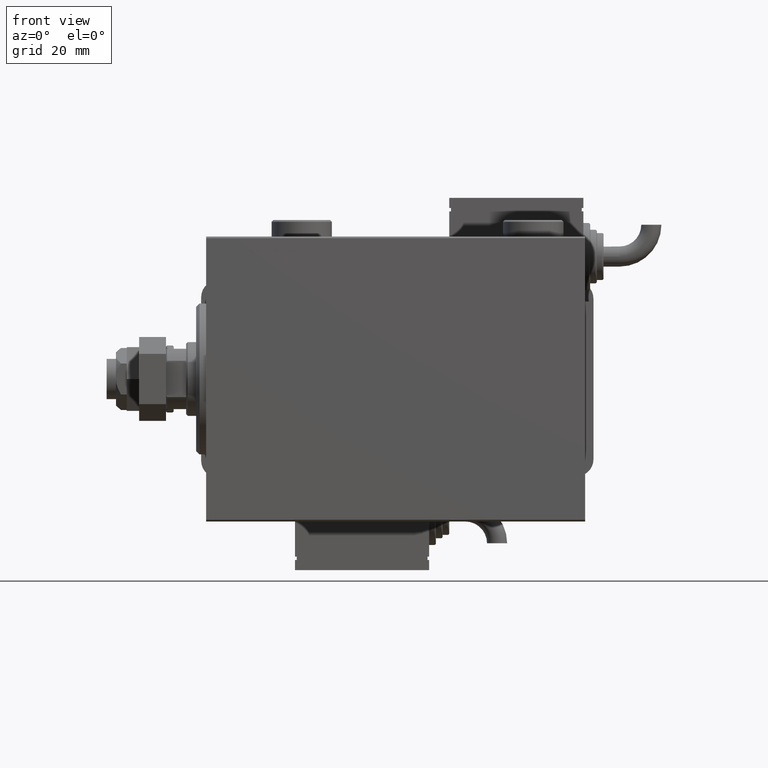
[diagram: clean part render]
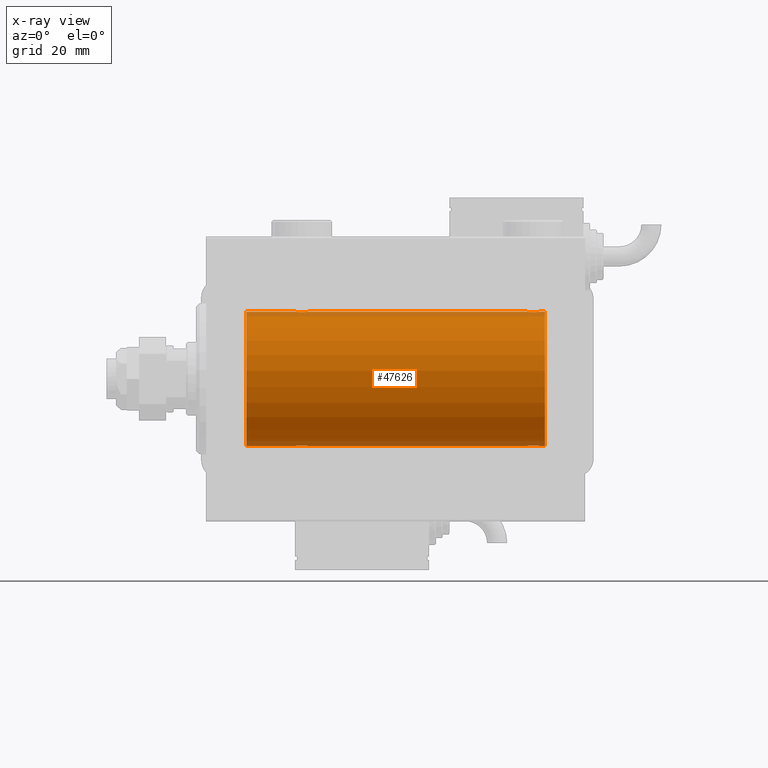
[diagram: x-ray — body ghosted, one internal face saturated and labeled with its STEP entity id]
A machine part, front view, then the same camera in x-ray: the body is ghosted and one INTERNAL B-rep face — a face not visible from any outside direction — is saturated and labeled: STEP entity #47626.
In plain terms, the highlighted cylindrical surface (partial cylindrical patch) has radius 20 mm, axis along (-1, -0, -0).
Its self-contained STEP definition (entity closure, byte-faithful):
#528 = CARTESIAN_POINT ( 'NONE',  ( 101.0000000000000000, 0.000000000000000000, 20.00000000000000000 ) ) ;
#765 = CARTESIAN_POINT ( 'NONE',  ( 29.72028945794465571, -1.589957321664208223, -19.93683391378736047 ) ) ;
#841 = CARTESIAN_POINT ( 'NONE',  ( 29.71805419472152110, -1.591668229360196252, 19.93669678979812332 ) ) ;
#1452 = CARTESIAN_POINT ( 'NONE',  ( 26.50000000000000711, -0.2610801504281929919, 20.00000000000000000 ) ) ;
#1757 = CARTESIAN_POINT ( 'NONE',  ( 27.27971054205535850, -1.589957321664211998, 19.93683391378736047 ) ) ;
#2461 = CARTESIAN_POINT ( 'NONE',  ( 11.99999999999999645, 2.449293598294706513E-15, -20.00000000000000000 ) ) ;
#3026 = CARTESIAN_POINT ( 'NONE',  ( 96.17693331080533881, -1.505486175075777311, 19.94347168299868045 ) ) ;
#3630 = CARTESIAN_POINT ( 'NONE',  ( 98.50067219139243946, -1.736582545981368852, 19.92459705242980661 ) ) ;
#3676 = CARTESIAN_POINT ( 'NONE',  ( 26.55320515808203297, -0.5270924491156698810, -19.99450181871976184 ) ) ;
#3950 = FACE_OUTER_BOUND ( 'NONE', #57231, .T. ) ;
#4290 = CARTESIAN_POINT ( 'NONE',  ( 27.49932780860757475, -1.736582545981376180, -19.92459705242981371 ) ) ;
#4421 = CARTESIAN_POINT ( 'NONE',  ( 101.0000000000000000, 0.000000000000000000, 20.00000000000000000 ) ) ;
#4592 = CARTESIAN_POINT ( 'NONE',  ( 27.17903093152710525, -1.507328959728492457, -19.94333197382385592 ) ) ;
#4611 = CARTESIAN_POINT ( 'NONE',  ( 26.50000000000000355, -1.552596590610734385E-23, 20.00000000000000000 ) ) ;
#4615 = EDGE_CURVE ( 'NONE', #35112, #46193, #13613, .T. ) ;
#4690 = EDGE_CURVE ( 'NONE', #35846, #24786, #26253, .T. ) ;
#5493 = CARTESIAN_POINT ( 'NONE',  ( 28.63058871710834552, -2.000100592782553921, 19.89973863218035888 ) ) ;
#6108 = CARTESIAN_POINT ( 'NONE',  ( 29.14348528733041377, -1.898187925611340088, 19.90978194174746818 ) ) ;
#6527 = CARTESIAN_POINT ( 'NONE',  ( 30.50000000000000000, -4.014971335008767791E-15, 20.00000000000000000 ) ) ;
#6851 = ORIENTED_EDGE ( 'NONE', *, *, #58411, .T. ) ;
#7116 = LINE ( 'NONE', #26040, #42514 ) ;
#7449 = DIRECTION ( 'NONE',  ( -1.000000000000000000, -0.000000000000000000, -0.000000000000000000 ) ) ;
#7649 = CARTESIAN_POINT ( 'NONE',  ( 98.14630673924646942, -1.897222639860602245, -19.90987429971496425 ) ) ;
#7862 = CIRCLE ( 'NONE', #24680, 20.00000000000000000 ) ;
#7953 = CARTESIAN_POINT ( 'NONE',  ( 98.82306668919471804, -1.505486175075774646, -19.94347168299867334 ) ) ;
#8041 = CARTESIAN_POINT ( 'NONE',  ( 26.50000000000000355, -3.809869420541414000E-15, -20.00000000000000000 ) ) ;
#8259 = CARTESIAN_POINT ( 'NONE',  ( 99.09941524884030173, -1.228758402364235724, -19.96307487248084556 ) ) ;
#9254 = CARTESIAN_POINT ( 'NONE',  ( 28.76358144091416236, -1.986835489085814199, -19.90108393514801222 ) ) ;
#10129 = VECTOR ( 'NONE', #7449, 1000.000000000000000 ) ;
#10424 = CARTESIAN_POINT ( 'NONE',  ( 26.50000000000000355, -3.809869420541414000E-15, -20.00000000000000000 ) ) ;
#10464 = CARTESIAN_POINT ( 'NONE',  ( 29.82096906847289119, -1.507328959728493567, 19.94333197382385592 ) ) ;
#11375 = CARTESIAN_POINT ( 'NONE',  ( 30.09774691554730097, -1.230936344679278482, 19.96293863536309132 ) ) ;
#11992 = CARTESIAN_POINT ( 'NONE',  ( 96.17903093152715144, -1.507328959728500006, -19.94333197382386302 ) ) ;
#12446 = AXIS2_PLACEMENT_3D ( 'NONE', #58077, #34510, #38859 ) ;
#12642 = CARTESIAN_POINT ( 'NONE',  ( 98.82096906847290541, -1.507328959728488238, 19.94333197382385947 ) ) ;
#12886 = EDGE_CURVE ( 'NONE', #25390, #35846, #37877, .T. ) ;
#12950 = CARTESIAN_POINT ( 'NONE',  ( 96.85369326075360163, -1.897222639860597360, 19.90987429971497491 ) ) ;
#12999 = CARTESIAN_POINT ( 'NONE',  ( 28.36941128289166159, -2.000100592782553921, -19.89973863218036598 ) ) ;
#13031 = ORIENTED_EDGE ( 'NONE', *, *, #4615, .T. ) ;
#13426 = VERTEX_POINT ( 'NONE', #22160 ) ;
#13609 = EDGE_CURVE ( 'NONE', #17775, #14986, #24354, .T. ) ;
#13613 = B_SPLINE_CURVE_WITH_KNOTS ( 'NONE', 3,
 ( #57907, #1452, #21006, #44277, #52660, #58217, #1757, #15412, #57293, #58526, #14808, #29690, #16027, #5493, #57599, #43355, #6108, #34968, #53882, #841, #10464, #11375, #29385, #34037, #48318, #25043 ),
 .UNSPECIFIED., .F., .F.,
 ( 4, 2, 2, 2, 2, 2, 2, 2, 2, 2, 2, 2, 4 ),
 ( 0.006256819553329811059, 0.007038738568778783733, 0.007820657584227756406, 0.008211617091952238406, 0.008602576599676722141, 0.008993536107401204141, 0.009384495615125686141, 0.009775455122850168141, 0.01016641463057465014, 0.01055737413829913214, 0.01094833364602361414, 0.01173025266147257814, 0.01251217167692154214 ),
 .UNSPECIFIED. ) ;
#13873 = DIRECTION ( 'NONE',  ( -1.000000000000000000, -0.000000000000000000, -0.000000000000000000 ) ) ;
#14808 = CARTESIAN_POINT ( 'NONE',  ( 27.98076487864722495, -1.935816449315125087, 19.90611141657401362 ) ) ;
#14986 = VERTEX_POINT ( 'NONE', #41487 ) ;
#15020 = ORIENTED_EDGE ( 'NONE', *, *, #37478, .F. ) ;
#15331 = CARTESIAN_POINT ( 'NONE',  ( 101.0000000000000000, 2.449293598294706513E-15, -20.00000000000000000 ) ) ;
#15412 = CARTESIAN_POINT ( 'NONE',  ( 27.49693443660397918, -1.735203193119897902, 19.92471783160911158 ) ) ;
#15496 = DIRECTION ( 'NONE',  ( -1.000000000000000000, -0.000000000000000000, -0.000000000000000000 ) ) ;
#16027 = CARTESIAN_POINT ( 'NONE',  ( 28.36634803857552001, -1.999898234284063436, 19.89975896996866211 ) ) ;
#16544 = ORIENTED_EDGE ( 'NONE', *, *, #61132, .T. ) ;
#16634 = CARTESIAN_POINT ( 'NONE',  ( 99.44755062882506991, -0.5243189001514980685, -19.99457699142850231 ) ) ;
#16750 = LINE ( 'NONE', #54612, #10129 ) ;
#16896 = ORIENTED_EDGE ( 'NONE', *, *, #13609, .T. ) ;
#16983 = CARTESIAN_POINT ( 'NONE',  ( 97.23641855908584830, -1.986835489085812867, 19.90108393514801577 ) ) ;
#17136 = EDGE_CURVE ( 'NONE', #36343, #60031, #28017, .T. ) ;
#17465 = EDGE_CURVE ( 'NONE', #55932, #46193, #19761, .T. ) ;
#17642 = CARTESIAN_POINT ( 'NONE',  ( 27.61420923329272981, -1.797933656607917596, -19.91908554465558367 ) ) ;
#17775 = VERTEX_POINT ( 'NONE', #2461 ) ;
#17904 = CARTESIAN_POINT ( 'NONE',  ( 95.50000000000001421, -0.2610801504281927699, 20.00000000000000355 ) ) ;
#18324 = B_SPLINE_CURVE_WITH_KNOTS ( 'NONE', 3,
 ( #41190, #17904, #31271, #54838, #22264, #3026, #50190, #36540, #60101, #12950, #59482, #16983, #22570, #60717, #35926, #45851, #45543, #46159, #3630, #31884, #12642, #36847, #26926, #50494, #55756, #21968 ),
 .UNSPECIFIED., .F., .F.,
 ( 4, 2, 2, 2, 2, 2, 2, 2, 2, 2, 2, 2, 4 ),
 ( 0.006256819553329836213, 0.007038738568778784600, 0.007820657584227733855, 0.008211617091952222794, 0.008602576599676711733, 0.008993536107401198937, 0.009384495615125687876, 0.009775455122850176815, 0.01016641463057466402, 0.01055737413829915296, 0.01094833364602364190, 0.01173025266147261630, 0.01251217167692159418 ),
 .UNSPECIFIED. ) ;
#18568 = CARTESIAN_POINT ( 'NONE',  ( 29.50306556339602437, -1.735203193119894349, -19.92471783160910803 ) ) ;
#18635 = CARTESIAN_POINT ( 'NONE',  ( 95.50000000000000000, -1.207436508668459186E-14, -20.00000000000000000 ) ) ;
#19761 = LINE ( 'NONE', #528, #27466 ) ;
#21006 = CARTESIAN_POINT ( 'NONE',  ( 26.55244937117492299, -0.5243189001515023984, 19.99457699142850586 ) ) ;
#21485 = DIRECTION ( 'NONE',  ( -1.000000000000000000, -0.000000000000000000, -0.000000000000000000 ) ) ;
#21618 = CARTESIAN_POINT ( 'NONE',  ( 99.24825913460016125, -1.005710574260839651, -19.97614991974274901 ) ) ;
#21968 = CARTESIAN_POINT ( 'NONE',  ( 99.50000000000000000, 9.984436361108698300E-16, 20.00000000000000000 ) ) ;
#22160 = CARTESIAN_POINT ( 'NONE',  ( 30.50000000000000000, 2.449293582768389958E-15, -20.00000000000000000 ) ) ;
#22225 = CARTESIAN_POINT ( 'NONE',  ( 97.23922743968432769, -1.987205673487818514, -19.90104673894210663 ) ) ;
#22264 = CARTESIAN_POINT ( 'NONE',  ( 95.90058475115969827, -1.228758402364240609, 19.96307487248084911 ) ) ;
#22570 = CARTESIAN_POINT ( 'NONE',  ( 97.36634803857555198, -1.999898234284061216, 19.89975896996866922 ) ) ;
#23226 = CARTESIAN_POINT ( 'NONE',  ( 30.24825913460018612, -1.005710574260838985, -19.97614991974274190 ) ) ;
#23526 = CARTESIAN_POINT ( 'NONE',  ( 29.38829437207091999, -1.796691196322316664, -19.91919800395357143 ) ) ;
#23600 = DIRECTION ( 'NONE',  ( -1.000000000000000000, -0.000000000000000000, -0.000000000000000000 ) ) ;
#24354 = CIRCLE ( 'NONE', #12446, 20.00000000000000000 ) ;
#24680 = AXIS2_PLACEMENT_3D ( 'NONE', #26551, #41129, #45789 ) ;
#24786 = VERTEX_POINT ( 'NONE', #18635 ) ;
#25043 = CARTESIAN_POINT ( 'NONE',  ( 30.50000000000000000, -4.014971335008767791E-15, 20.00000000000000000 ) ) ;
#25390 = VERTEX_POINT ( 'NONE', #15331 ) ;
#26040 = CARTESIAN_POINT ( 'NONE',  ( 101.0000000000000000, 2.449293598294706513E-15, -20.00000000000000000 ) ) ;
#26253 = B_SPLINE_CURVE_WITH_KNOTS ( 'NONE', 3,
 ( #26263, #45202, #16634, #21618, #8259, #7953, #26573, #54188, #35887, #7649, #35579, #26882, #45807, #54494, #22225, #41150, #27185, #39927, #31231, #58830, #11992, #30925, #54801, #56922, #60679, #28101 ),
 .UNSPECIFIED., .F., .F.,
 ( 4, 2, 2, 2, 2, 2, 2, 2, 2, 2, 2, 2, 4 ),
 ( 0.006256819553329824070, 0.007038738568778795009, 0.007820657584227765080, 0.008211617091952250549, 0.008602576599676736019, 0.008993536107401221488, 0.009384495615125706958, 0.009775455122850190692, 0.01016641463057467790, 0.01055737413829916163, 0.01094833364602364884, 0.01173025266147261630, 0.01251217167692158724 ),
 .UNSPECIFIED. ) ;
#26263 = CARTESIAN_POINT ( 'NONE',  ( 99.50000000000000000, 2.449293582762473501E-15, -20.00000000000000000 ) ) ;
#26551 = CARTESIAN_POINT ( 'NONE',  ( 101.0000000000000000, 0.000000000000000000, 0.000000000000000000 ) ) ;
#26573 = CARTESIAN_POINT ( 'NONE',  ( 98.72028945794467347, -1.589957321664213330, -19.93683391378736758 ) ) ;
#26882 = CARTESIAN_POINT ( 'NONE',  ( 97.76358144091416591, -1.986835489085820639, -19.90108393514801222 ) ) ;
#26926 = CARTESIAN_POINT ( 'NONE',  ( 99.24686976303073038, -1.008108445278681931, 19.97602680192586178 ) ) ;
#27185 = CARTESIAN_POINT ( 'NONE',  ( 96.85651471266960755, -1.898187925611348081, -19.90978194174746818 ) ) ;
#27352 = CARTESIAN_POINT ( 'NONE',  ( 101.0000000000000000, 2.449293598294706513E-15, -20.00000000000000000 ) ) ;
#27466 = VECTOR ( 'NONE', #43349, 1000.000000000000000 ) ;
#27576 = CARTESIAN_POINT ( 'NONE',  ( 29.14630673924643744, -1.897222639860594029, -19.90987429971496780 ) ) ;
#27888 = CARTESIAN_POINT ( 'NONE',  ( 30.49999999999999645, -0.2610801504281900498, -19.99999999999999645 ) ) ;
#28017 = LINE ( 'NONE', #4421, #41329 ) ;
#28101 = CARTESIAN_POINT ( 'NONE',  ( 95.50000000000000000, -1.207436508668459186E-14, -20.00000000000000000 ) ) ;
#28693 = ORIENTED_EDGE ( 'NONE', *, *, #48557, .T. ) ;
#29385 = CARTESIAN_POINT ( 'NONE',  ( 30.24686976303072328, -1.008108445278687926, 19.97602680192586888 ) ) ;
#29690 = CARTESIAN_POINT ( 'NONE',  ( 28.23641855908585541, -1.986835489085814643, 19.90108393514801222 ) ) ;
#30737 = CARTESIAN_POINT ( 'NONE',  ( 99.50000000000000000, 2.449293582762473501E-15, -20.00000000000000000 ) ) ;
#30925 = CARTESIAN_POINT ( 'NONE',  ( 95.90225308445270969, -1.230936344679285144, -19.96293863536309843 ) ) ;
#31231 = CARTESIAN_POINT ( 'NONE',  ( 96.49932780860756054, -1.736582545981379289, -19.92459705242981016 ) ) ;
#31271 = CARTESIAN_POINT ( 'NONE',  ( 95.55244937117491588, -0.5243189001515019543, 19.99457699142849876 ) ) ;
#31884 = CARTESIAN_POINT ( 'NONE',  ( 98.71805419472153176, -1.591668229360190034, 19.93669678979813042 ) ) ;
#32233 = CARTESIAN_POINT ( 'NONE',  ( 27.28194580527848601, -1.591668229360197140, -19.93669678979812332 ) ) ;
#32235 = AXIS2_PLACEMENT_3D ( 'NONE', #50813, #13873, #42416 ) ;
#32832 = CARTESIAN_POINT ( 'NONE',  ( 30.50000000000000000, 2.449293582768389958E-15, -20.00000000000000000 ) ) ;
#34037 = CARTESIAN_POINT ( 'NONE',  ( 30.44679484191797414, -0.5270924491156706582, 19.99450181871975829 ) ) ;
#34510 = DIRECTION ( 'NONE',  ( -1.000000000000000000, 0.000000000000000000, 0.000000000000000000 ) ) ;
#34968 = CARTESIAN_POINT ( 'NONE',  ( 29.38579076670729151, -1.797933656607919817, 19.91908554465558367 ) ) ;
#35033 = B_SPLINE_CURVE_WITH_KNOTS ( 'NONE', 3,
 ( #32832, #27888, #51758, #23226, #47115, #46814, #765, #18568, #23526, #27576, #45896, #9254, #46506, #12999, #60145, #36891, #36276, #17642, #4290, #32233, #4592, #36582, #42153, #3676, #42454, #8041 ),
 .UNSPECIFIED., .F., .F.,
 ( 4, 2, 2, 2, 2, 2, 2, 2, 2, 2, 2, 2, 4 ),
 ( 0.006256819553329842284, 0.007038738568778818427, 0.007820657584227792836, 0.008211617091952278305, 0.008602576599676762040, 0.008993536107401245774, 0.009384495615125729509, 0.009775455122850213244, 0.01016641463057469871, 0.01055737413829918071, 0.01094833364602366618, 0.01173025266147263365, 0.01251217167692159939 ),
 .UNSPECIFIED. ) ;
#35112 = VERTEX_POINT ( 'NONE', #4611 ) ;
#35579 = CARTESIAN_POINT ( 'NONE',  ( 98.01923512135277861, -1.935816449315129750, -19.90611141657401362 ) ) ;
#35846 = VERTEX_POINT ( 'NONE', #30737 ) ;
#35887 = CARTESIAN_POINT ( 'NONE',  ( 98.38829437207090223, -1.796691196322323103, -19.91919800395357143 ) ) ;
#35926 = CARTESIAN_POINT ( 'NONE',  ( 97.76077256031565810, -1.987205673487806967, 19.90104673894210663 ) ) ;
#36276 = CARTESIAN_POINT ( 'NONE',  ( 27.85651471266959334, -1.898187925611338533, -19.90978194174746818 ) ) ;
#36343 = VERTEX_POINT ( 'NONE', #54839 ) ;
#36540 = CARTESIAN_POINT ( 'NONE',  ( 96.49693443660399339, -1.735203193119890352, 19.92471783160910803 ) ) ;
#36582 = CARTESIAN_POINT ( 'NONE',  ( 26.90225308445269903, -1.230936344679278260, -19.96293863536309132 ) ) ;
#36594 = VERTEX_POINT ( 'NONE', #10424 ) ;
#36847 = CARTESIAN_POINT ( 'NONE',  ( 99.09774691554729031, -1.230936344679272043, 19.96293863536309487 ) ) ;
#36891 = CARTESIAN_POINT ( 'NONE',  ( 27.98351467081095123, -1.936551476643005198, -19.90603968831098314 ) ) ;
#37478 = EDGE_CURVE ( 'NONE', #35112, #14986, #16750, .T. ) ;
#37877 = LINE ( 'NONE', #27352, #49082 ) ;
#38859 = DIRECTION ( 'NONE',  ( 0.000000000000000000, 0.000000000000000000, 1.000000000000000000 ) ) ;
#39927 = CARTESIAN_POINT ( 'NONE',  ( 96.61420923329271204, -1.797933656607926700, -19.91908554465557302 ) ) ;
#41129 = DIRECTION ( 'NONE',  ( -1.000000000000000000, 0.000000000000000000, 0.000000000000000000 ) ) ;
#41150 = CARTESIAN_POINT ( 'NONE',  ( 96.98351467081093347, -1.936551476643015191, -19.90603968831098669 ) ) ;
#41190 = CARTESIAN_POINT ( 'NONE',  ( 95.50000000000000000, -1.553188236289650144E-23, 20.00000000000000000 ) ) ;
#41329 = VECTOR ( 'NONE', #56239, 1000.000000000000000 ) ;
#41487 = CARTESIAN_POINT ( 'NONE',  ( 11.99999999999999645, 0.000000000000000000, 20.00000000000000000 ) ) ;
#41808 = CYLINDRICAL_SURFACE ( 'NONE', #32235, 20.00000000000000000 ) ;
#42126 = ORIENTED_EDGE ( 'NONE', *, *, #17136, .F. ) ;
#42153 = CARTESIAN_POINT ( 'NONE',  ( 26.75313023696928738, -1.008108445278687704, -19.97602680192586533 ) ) ;
#42416 = DIRECTION ( 'NONE',  ( 0.000000000000000000, 0.000000000000000000, 1.000000000000000000 ) ) ;
#42454 = CARTESIAN_POINT ( 'NONE',  ( 26.50000000000001066, -0.2644051013331030209, -20.00000000000000355 ) ) ;
#42514 = VECTOR ( 'NONE', #15496, 1000.000000000000000 ) ;
#43082 = CARTESIAN_POINT ( 'NONE',  ( 99.50000000000000000, 9.984436361108698300E-16, 20.00000000000000000 ) ) ;
#43349 = DIRECTION ( 'NONE',  ( -1.000000000000000000, -0.000000000000000000, -0.000000000000000000 ) ) ;
#43355 = CARTESIAN_POINT ( 'NONE',  ( 29.01648532918905943, -1.936551476643006753, 19.90603968831098669 ) ) ;
#44277 = CARTESIAN_POINT ( 'NONE',  ( 26.75174086539981033, -1.005710574260841206, 19.97614991974274190 ) ) ;
#45202 = CARTESIAN_POINT ( 'NONE',  ( 99.49999999999998579, -0.2610801504281911045, -19.99999999999999645 ) ) ;
#45393 = EDGE_CURVE ( 'NONE', #55932, #60031, #18324, .T. ) ;
#45543 = CARTESIAN_POINT ( 'NONE',  ( 98.14348528733043509, -1.898187925611334315, 19.90978194174746818 ) ) ;
#45789 = DIRECTION ( 'NONE',  ( 0.000000000000000000, 0.000000000000000000, 1.000000000000000000 ) ) ;
#45807 = CARTESIAN_POINT ( 'NONE',  ( 97.63365196142450486, -1.999898234284069432, -19.89975896996866211 ) ) ;
#45851 = CARTESIAN_POINT ( 'NONE',  ( 98.01648532918906653, -1.936551476643001202, 19.90603968831098669 ) ) ;
#45896 = CARTESIAN_POINT ( 'NONE',  ( 29.01923512135276795, -1.935816449315124643, -19.90611141657401717 ) ) ;
#46159 = CARTESIAN_POINT ( 'NONE',  ( 98.38579076670728796, -1.797933656607910713, 19.91908554465557657 ) ) ;
#46193 = VERTEX_POINT ( 'NONE', #6527 ) ;
#46506 = CARTESIAN_POINT ( 'NONE',  ( 28.63365196142448355, -1.999898234284062992, -19.89975896996866211 ) ) ;
#46814 = CARTESIAN_POINT ( 'NONE',  ( 29.82306668919470383, -1.505486175075772870, -19.94347168299867334 ) ) ;
#47115 = CARTESIAN_POINT ( 'NONE',  ( 30.09941524884030173, -1.228758402364235502, -19.96307487248084911 ) ) ;
#47419 = ORIENTED_EDGE ( 'NONE', *, *, #12886, .T. ) ;
#47626 = ADVANCED_FACE ( 'NONE', ( #3950 ), #41808, .F. ) ;
#48318 = CARTESIAN_POINT ( 'NONE',  ( 30.49999999999999289, -0.2644051013330969702, 20.00000000000000711 ) ) ;
#48557 = EDGE_CURVE ( 'NONE', #13426, #36594, #35033, .T. ) ;
#49082 = VECTOR ( 'NONE', #23600, 1000.000000000000000 ) ;
#50169 = ORIENTED_EDGE ( 'NONE', *, *, #17465, .F. ) ;
#50190 = CARTESIAN_POINT ( 'NONE',  ( 96.27971054205538337, -1.589957321664204448, 19.93683391378736403 ) ) ;
#50494 = CARTESIAN_POINT ( 'NONE',  ( 99.44679484191794927, -0.5270924491156651071, 19.99450181871975829 ) ) ;
#50813 = CARTESIAN_POINT ( 'NONE',  ( 101.0000000000000000, 0.000000000000000000, 0.000000000000000000 ) ) ;
#51497 = VECTOR ( 'NONE', #21485, 1000.000000000000000 ) ;
#51758 = CARTESIAN_POINT ( 'NONE',  ( 30.44755062882508412, -0.5243189001514996228, -19.99457699142849876 ) ) ;
#52660 = CARTESIAN_POINT ( 'NONE',  ( 26.90058475115969827, -1.228758402364236391, 19.96307487248084556 ) ) ;
#53440 = LINE ( 'NONE', #59304, #51497 ) ;
#53882 = CARTESIAN_POINT ( 'NONE',  ( 29.50067219139244656, -1.736582545981375292, 19.92459705242981371 ) ) ;
#54188 = CARTESIAN_POINT ( 'NONE',  ( 98.50306556339604924, -1.735203193119900122, -19.92471783160911158 ) ) ;
#54494 = CARTESIAN_POINT ( 'NONE',  ( 97.36941128289166159, -2.000100592782561471, -19.89973863218036243 ) ) ;
#54612 = CARTESIAN_POINT ( 'NONE',  ( 101.0000000000000000, 0.000000000000000000, 20.00000000000000000 ) ) ;
#54614 = ORIENTED_EDGE ( 'NONE', *, *, #56754, .F. ) ;
#54801 = CARTESIAN_POINT ( 'NONE',  ( 95.75313023696931225, -1.008108445278694587, -19.97602680192586888 ) ) ;
#54838 = CARTESIAN_POINT ( 'NONE',  ( 95.75174086539981033, -1.005710574260841872, 19.97614991974274190 ) ) ;
#54839 = CARTESIAN_POINT ( 'NONE',  ( 101.0000000000000000, 0.000000000000000000, 20.00000000000000000 ) ) ;
#54929 = CARTESIAN_POINT ( 'NONE',  ( 95.50000000000000000, -1.553188236289650144E-23, 20.00000000000000000 ) ) ;
#55231 = ORIENTED_EDGE ( 'NONE', *, *, #45393, .T. ) ;
#55756 = CARTESIAN_POINT ( 'NONE',  ( 99.50000000000000000, -0.2644051013330985245, 19.99999999999999645 ) ) ;
#55932 = VERTEX_POINT ( 'NONE', #54929 ) ;
#56239 = DIRECTION ( 'NONE',  ( -1.000000000000000000, -0.000000000000000000, -0.000000000000000000 ) ) ;
#56754 = EDGE_CURVE ( 'NONE', #25390, #36343, #7862, .T. ) ;
#56922 = CARTESIAN_POINT ( 'NONE',  ( 95.55320515808205073, -0.5270924491156777636, -19.99450181871976540 ) ) ;
#57231 = EDGE_LOOP ( 'NONE', ( #54614, #47419, #58367, #6851, #28693, #16544, #16896, #15020, #13031, #50169, #55231, #42126 ) ) ;
#57293 = CARTESIAN_POINT ( 'NONE',  ( 27.61170562792909422, -1.796691196322319994, 19.91919800395357143 ) ) ;
#57599 = CARTESIAN_POINT ( 'NONE',  ( 28.76077256031567586, -1.987205673487810298, 19.90104673894210663 ) ) ;
#57907 = CARTESIAN_POINT ( 'NONE',  ( 26.50000000000000355, -1.552596590610734385E-23, 20.00000000000000000 ) ) ;
#58077 = CARTESIAN_POINT ( 'NONE',  ( 11.99999999999999645, 0.000000000000000000, 0.000000000000000000 ) ) ;
#58217 = CARTESIAN_POINT ( 'NONE',  ( 27.17693331080528907, -1.505486175075773758, 19.94347168299867690 ) ) ;
#58367 = ORIENTED_EDGE ( 'NONE', *, *, #4690, .T. ) ;
#58411 = EDGE_CURVE ( 'NONE', #24786, #13426, #53440, .T. ) ;
#58526 = CARTESIAN_POINT ( 'NONE',  ( 27.85369326075355545, -1.897222639860597360, 19.90987429971497491 ) ) ;
#58830 = CARTESIAN_POINT ( 'NONE',  ( 96.28194580527851087, -1.591668229360199804, -19.93669678979812687 ) ) ;
#59304 = CARTESIAN_POINT ( 'NONE',  ( 101.0000000000000000, 2.449293598294706513E-15, -20.00000000000000000 ) ) ;
#59482 = CARTESIAN_POINT ( 'NONE',  ( 96.98076487864724982, -1.935816449315123977, 19.90611141657402072 ) ) ;
#60031 = VERTEX_POINT ( 'NONE', #43082 ) ;
#60101 = CARTESIAN_POINT ( 'NONE',  ( 96.61170562792906935, -1.796691196322320216, 19.91919800395356788 ) ) ;
#60145 = CARTESIAN_POINT ( 'NONE',  ( 28.23922743968432059, -1.987205673487808966, -19.90104673894211018 ) ) ;
#60679 = CARTESIAN_POINT ( 'NONE',  ( 95.50000000000002842, -0.2644051013331136790, -20.00000000000000355 ) ) ;
#60717 = CARTESIAN_POINT ( 'NONE',  ( 97.63058871710833841, -2.000100592782551256, 19.89973863218035888 ) ) ;
#61132 = EDGE_CURVE ( 'NONE', #36594, #17775, #7116, .T. ) ;